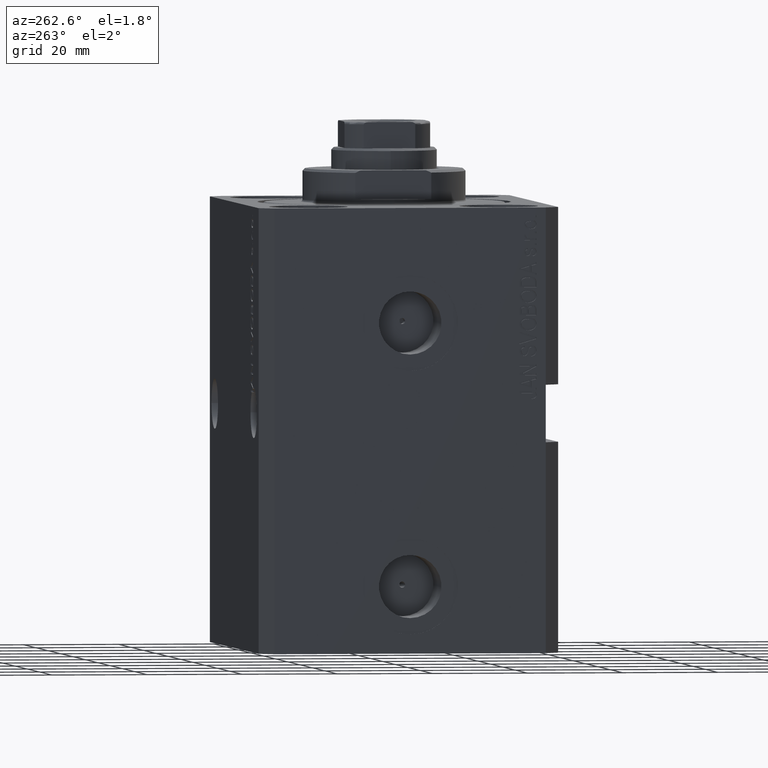
[diagram: clean part render]
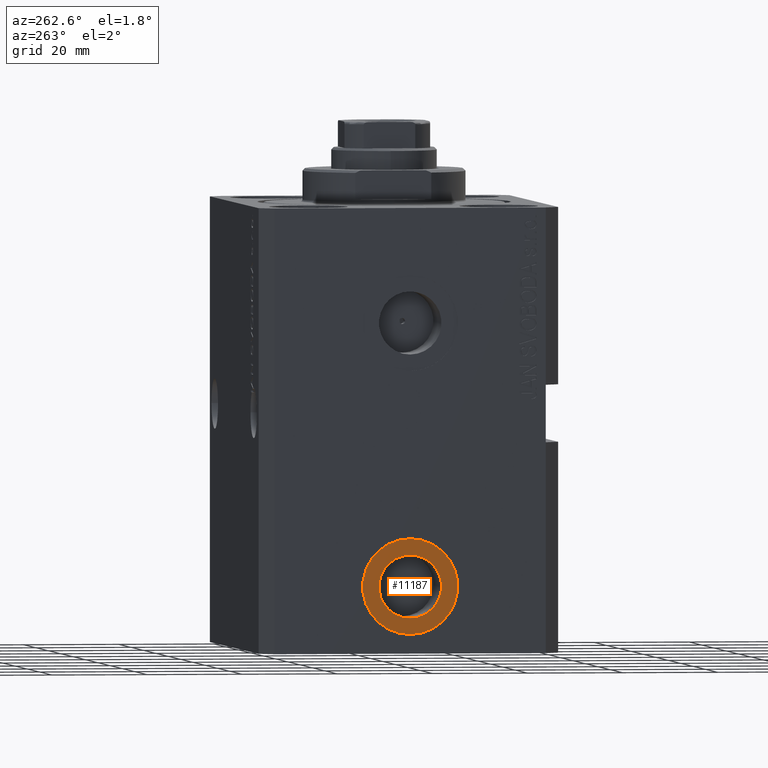
[diagram: same view with one face highlighted and labeled with its STEP entity id]
A machine part, auxiliary view. The second image highlights one B-rep face of the part: STEP entity #11187.
In plain terms, the highlighted planar face has unit normal (-1, 0, 0).
Its self-contained STEP definition (entity closure, byte-faithful):
#434 = FACE_BOUND ( 'NONE', #43485, .T. ) ;
#1179 = AXIS2_PLACEMENT_3D ( 'NONE', #25800, #31717, #42581 ) ;
#1817 = CIRCLE ( 'NONE', #27166, 9.999999999999994671 ) ;
#2597 = CIRCLE ( 'NONE', #40943, 6.580000000000002736 ) ;
#2671 = CARTESIAN_POINT ( 'NONE',  ( -42.39999999999999858, -9.674709713264090904E-15, -79.00000000000000000 ) ) ;
#5940 = ORIENTED_EDGE ( 'NONE', *, *, #40178, .T. ) ;
#7010 = PLANE ( 'NONE',  #34111 ) ;
#7648 = DIRECTION ( 'NONE',  ( -1.000000000000000000, 0.000000000000000000, 0.000000000000000000 ) ) ;
#7671 = CIRCLE ( 'NONE', #1179, 9.999999999999994671 ) ;
#8047 = VERTEX_POINT ( 'NONE', #9317 ) ;
#9078 = VERTEX_POINT ( 'NONE', #11709 ) ;
#9317 = CARTESIAN_POINT ( 'NONE',  ( -42.39999999999999858, -8.450062914116737844E-15, -89.00000000000000000 ) ) ;
#10561 = CARTESIAN_POINT ( 'NONE',  ( -42.39999999999999858, -9.674709713264090904E-15, -69.00000000000000000 ) ) ;
#11187 = ADVANCED_FACE ( 'NONE', ( #434, #24450 ), #7010, .T. ) ;
#11709 = CARTESIAN_POINT ( 'NONE',  ( -42.39999999999999858, -9.674709713264090904E-15, -72.42000000000000171 ) ) ;
#14169 = EDGE_CURVE ( 'NONE', #21470, #9078, #24693, .T. ) ;
#15738 = ORIENTED_EDGE ( 'NONE', *, *, #14169, .F. ) ;
#16505 = DIRECTION ( 'NONE',  ( -1.000000000000000000, 0.000000000000000000, 0.000000000000000000 ) ) ;
#18864 = ORIENTED_EDGE ( 'NONE', *, *, #37699, .T. ) ;
#19926 = CARTESIAN_POINT ( 'NONE',  ( -42.39999999999999858, -9.674709713264090904E-15, -79.00000000000000000 ) ) ;
#21278 = DIRECTION ( 'NONE',  ( -1.000000000000000000, 0.000000000000000000, 0.000000000000000000 ) ) ;
#21470 = VERTEX_POINT ( 'NONE', #32123 ) ;
#21476 = DIRECTION ( 'NONE',  ( 0.000000000000000000, 0.000000000000000000, 1.000000000000000000 ) ) ;
#23229 = AXIS2_PLACEMENT_3D ( 'NONE', #19926, #33759, #43742 ) ;
#24450 = FACE_OUTER_BOUND ( 'NONE', #29779, .T. ) ;
#24693 = CIRCLE ( 'NONE', #23229, 6.580000000000002736 ) ;
#25098 = CARTESIAN_POINT ( 'NONE',  ( -42.39999999999999858, -9.674709713264090904E-15, -79.00000000000000000 ) ) ;
#25800 = CARTESIAN_POINT ( 'NONE',  ( -42.39999999999999858, -9.674709713264090904E-15, -79.00000000000000000 ) ) ;
#27166 = AXIS2_PLACEMENT_3D ( 'NONE', #2671, #16505, #37331 ) ;
#28078 = CARTESIAN_POINT ( 'NONE',  ( -42.39999999999999858, -9.674709713264090904E-15, -79.00000000000000000 ) ) ;
#29215 = EDGE_CURVE ( 'NONE', #9078, #21470, #2597, .T. ) ;
#29779 = EDGE_LOOP ( 'NONE', ( #5940, #18864 ) ) ;
#31717 = DIRECTION ( 'NONE',  ( -1.000000000000000000, 0.000000000000000000, 0.000000000000000000 ) ) ;
#32123 = CARTESIAN_POINT ( 'NONE',  ( -42.39999999999999858, -8.868892119425131862E-15, -85.57999999999999829 ) ) ;
#33759 = DIRECTION ( 'NONE',  ( -1.000000000000000000, 0.000000000000000000, 0.000000000000000000 ) ) ;
#34111 = AXIS2_PLACEMENT_3D ( 'NONE', #28078, #21278, #35107 ) ;
#35107 = DIRECTION ( 'NONE',  ( 0.000000000000000000, 0.000000000000000000, 1.000000000000000000 ) ) ;
#37331 = DIRECTION ( 'NONE',  ( 0.000000000000000000, 0.000000000000000000, 1.000000000000000000 ) ) ;
#37699 = EDGE_CURVE ( 'NONE', #8047, #43825, #1817, .T. ) ;
#40178 = EDGE_CURVE ( 'NONE', #43825, #8047, #7671, .T. ) ;
#40943 = AXIS2_PLACEMENT_3D ( 'NONE', #25098, #7648, #21476 ) ;
#42581 = DIRECTION ( 'NONE',  ( 0.000000000000000000, 0.000000000000000000, 1.000000000000000000 ) ) ;
#43485 = EDGE_LOOP ( 'NONE', ( #44108, #15738 ) ) ;
#43742 = DIRECTION ( 'NONE',  ( 0.000000000000000000, 0.000000000000000000, 1.000000000000000000 ) ) ;
#43825 = VERTEX_POINT ( 'NONE', #10561 ) ;
#44108 = ORIENTED_EDGE ( 'NONE', *, *, #29215, .F. ) ;